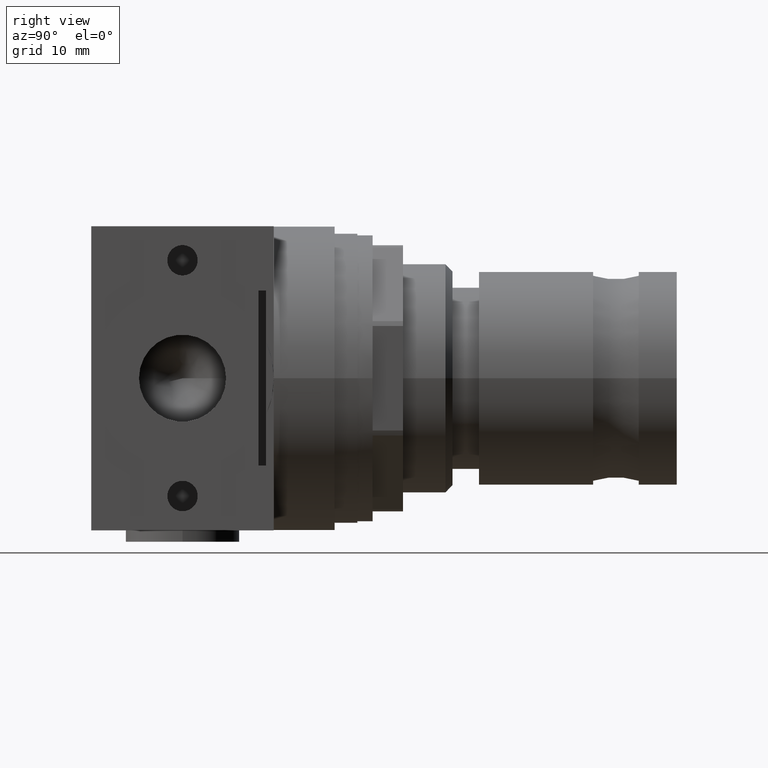
[diagram: clean part render]
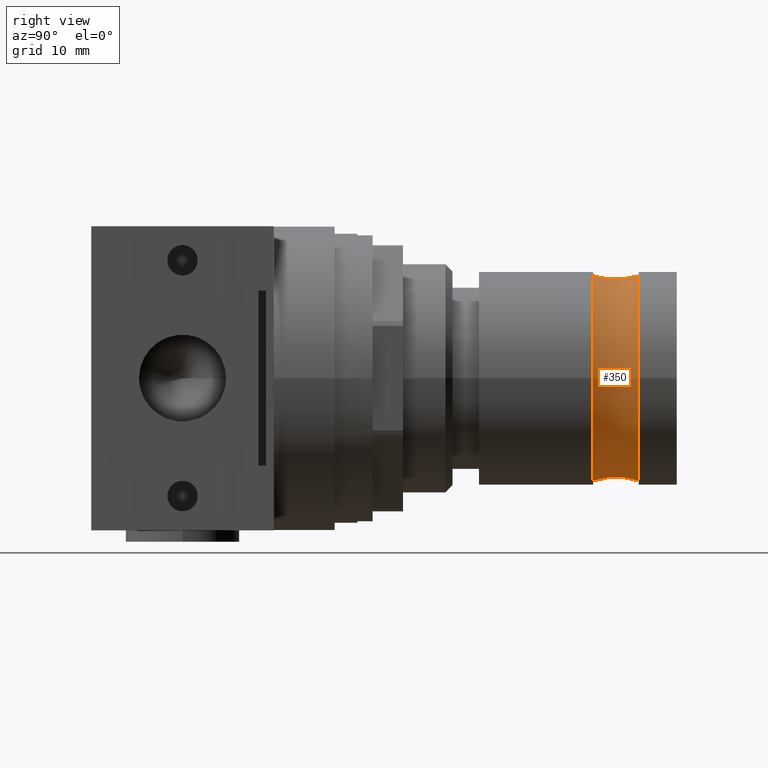
[diagram: same view with one face highlighted and labeled with its STEP entity id]
A machine part, right view. The second image highlights one B-rep face of the part: STEP entity #350.
In plain terms, the highlighted toroidal blend (fillet) surface has major radius 23.0394 mm and minor (blend) radius 10 mm.
Its self-contained STEP definition (entity closure, byte-faithful):
#350 = ADVANCED_FACE( '', ( #742, #743 ), #744, .F. );
#742 = FACE_OUTER_BOUND( '', #1187, .T. );
#743 = FACE_OUTER_BOUND( '', #1188, .T. );
#744 = TOROIDAL_SURFACE( '', #1189, 23.0393920141694, 9.99999999999998 );
#1187 = EDGE_LOOP( '', ( #1930 ) );
#1188 = EDGE_LOOP( '', ( #1931 ) );
#1189 = AXIS2_PLACEMENT_3D( '', #1932, #1933, #1934 );
#1930 = ORIENTED_EDGE( '', *, *, #2473, .F. );
#1931 = ORIENTED_EDGE( '', *, *, #2650, .T. );
#1932 = CARTESIAN_POINT( '', ( 37.0000000000000, 0.000000000000000, 0.000000000000000 ) );
#1933 = DIRECTION( '', ( 1.00000000000000, 0.000000000000000, -0.000000000000000 ) );
#1934 = DIRECTION( '', ( -0.000000000000000, 0.000000000000000, -1.00000000000000 ) );
#2473 = EDGE_CURVE( '', #2904, #2904, #2905, .T. );
#2650 = EDGE_CURVE( '', #3191, #3191, #3192, .T. );
#2904 = VERTEX_POINT( '', #3498 );
#2905 = CIRCLE( '', #3499, 13.5000000000000 );
#3191 = VERTEX_POINT( '', #3877 );
#3192 = CIRCLE( '', #3878, 13.5000000000000 );
#3498 = CARTESIAN_POINT( '', ( 40.0000000000000, 0.000000000000000, -13.5000000000000 ) );
#3499 = AXIS2_PLACEMENT_3D( '', #4213, #4214, #4215 );
#3877 = CARTESIAN_POINT( '', ( 34.0000000000000, 0.000000000000000, -13.5000000000000 ) );
#3878 = AXIS2_PLACEMENT_3D( '', #4434, #4435, #4436 );
#4213 = CARTESIAN_POINT( '', ( 40.0000000000000, 0.000000000000000, 0.000000000000000 ) );
#4214 = DIRECTION( '', ( 1.00000000000000, 0.000000000000000, -0.000000000000000 ) );
#4215 = DIRECTION( '', ( -0.000000000000000, 0.000000000000000, -1.00000000000000 ) );
#4434 = CARTESIAN_POINT( '', ( 34.0000000000000, 0.000000000000000, 0.000000000000000 ) );
#4435 = DIRECTION( '', ( 1.00000000000000, 0.000000000000000, -0.000000000000000 ) );
#4436 = DIRECTION( '', ( -0.000000000000000, 0.000000000000000, -1.00000000000000 ) );